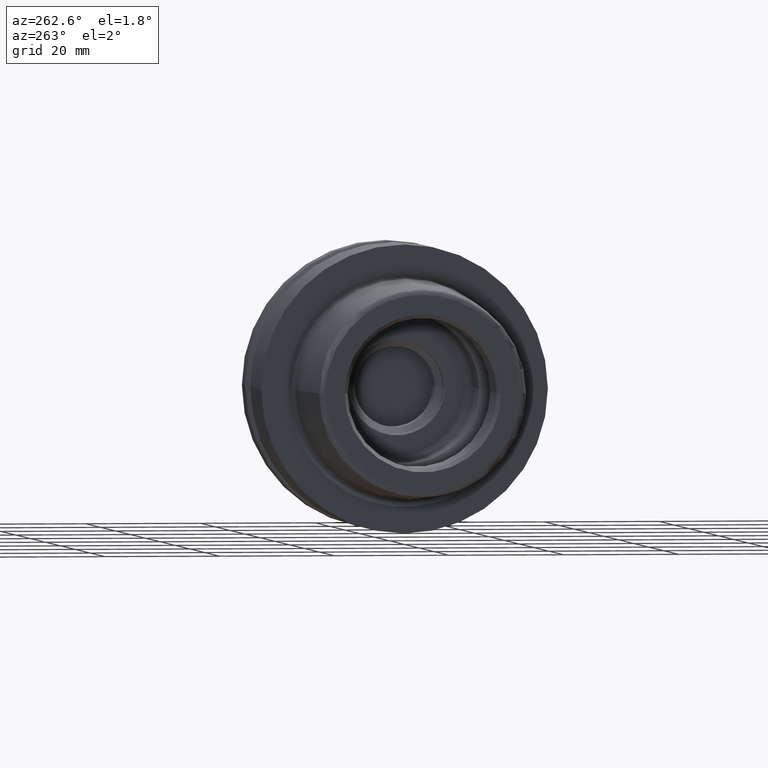
[diagram: clean part render]
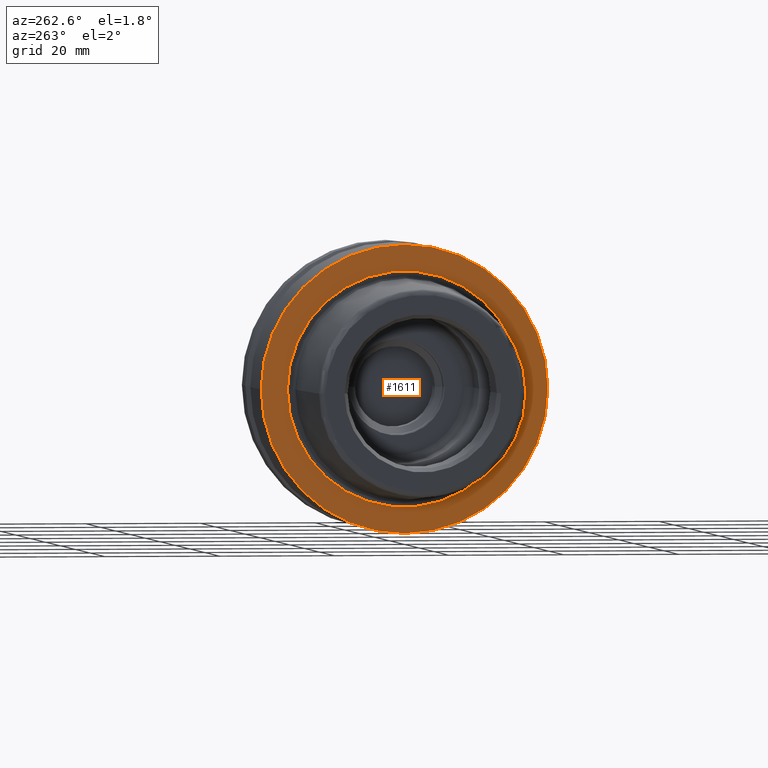
[diagram: same view with one face highlighted and labeled with its STEP entity id]
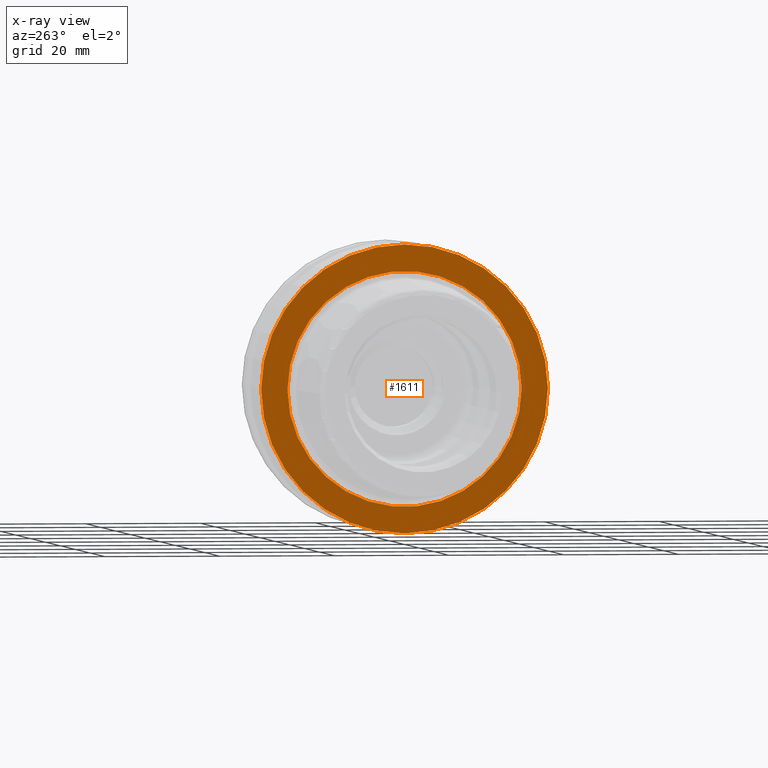
[diagram: x-ray of the same camera — body ghosted, the highlighted face saturated]
A machine part, auxiliary view. The second image highlights one B-rep face of the part: STEP entity #1611.
The next image is the same camera in x-ray: the body ghosted, the highlighted face saturated — about 2% of this face is hidden behind the body in this view.
In plain terms, the highlighted planar face has unit normal (1, 0, 0).
Its self-contained STEP definition (entity closure, byte-faithful):
#452=CARTESIAN_POINT('',(0.E0,0.E0,0.E0));
#453=DIRECTION('',(1.E0,0.E0,0.E0));
#454=DIRECTION('',(0.E0,1.E0,0.E0));
#455=AXIS2_PLACEMENT_3D('',#452,#453,#454);
#457=CARTESIAN_POINT('',(0.E0,0.E0,0.E0));
#458=DIRECTION('',(-1.E0,0.E0,0.E0));
#459=DIRECTION('',(0.E0,1.E0,0.E0));
#460=AXIS2_PLACEMENT_3D('',#457,#458,#459);
#462=CARTESIAN_POINT('',(0.E0,0.E0,0.E0));
#463=DIRECTION('',(-1.E0,0.E0,0.E0));
#464=DIRECTION('',(0.E0,-1.E0,0.E0));
#465=AXIS2_PLACEMENT_3D('',#462,#463,#464);
#467=CARTESIAN_POINT('',(0.E0,0.E0,0.E0));
#468=DIRECTION('',(-1.E0,0.E0,0.E0));
#469=DIRECTION('',(0.E0,1.E0,0.E0));
#470=AXIS2_PLACEMENT_3D('',#467,#468,#469);
#760=CARTESIAN_POINT('',(0.E0,-2.04248E1,0.E0));
#761=VERTEX_POINT('',#760);
#762=CARTESIAN_POINT('',(0.E0,2.04248E1,0.E0));
#763=VERTEX_POINT('',#762);
#812=CARTESIAN_POINT('',(0.E0,2.5E1,0.E0));
#813=CARTESIAN_POINT('',(0.E0,-2.5E1,0.E0));
#814=VERTEX_POINT('',#812);
#815=VERTEX_POINT('',#813);
#1596=CARTESIAN_POINT('',(0.E0,0.E0,0.E0));
#1597=DIRECTION('',(1.E0,0.E0,0.E0));
#1598=DIRECTION('',(0.E0,-1.E0,0.E0));
#1599=AXIS2_PLACEMENT_3D('',#1596,#1597,#1598);
#1600=PLANE('',#1599);
#1602=ORIENTED_EDGE('',*,*,#1601,.T.);
#1604=ORIENTED_EDGE('',*,*,#1603,.F.);
#1605=EDGE_LOOP('',(#1602,#1604));
#1606=FACE_OUTER_BOUND('',#1605,.F.);
#1607=ORIENTED_EDGE('',*,*,#1578,.T.);
#1608=ORIENTED_EDGE('',*,*,#1589,.T.);
#1609=EDGE_LOOP('',(#1607,#1608));
#1610=FACE_BOUND('',#1609,.F.);
#1611=ADVANCED_FACE('',(#1606,#1610),#1600,.F.);
#456=CIRCLE('',#455,2.5E1);
#461=CIRCLE('',#460,2.5E1);
#466=CIRCLE('',#465,2.04248E1);
#471=CIRCLE('',#470,2.04248E1);
#1578=EDGE_CURVE('',#761,#763,#466,.T.);
#1589=EDGE_CURVE('',#763,#761,#471,.T.);
#1601=EDGE_CURVE('',#814,#815,#456,.T.);
#1603=EDGE_CURVE('',#814,#815,#461,.T.);